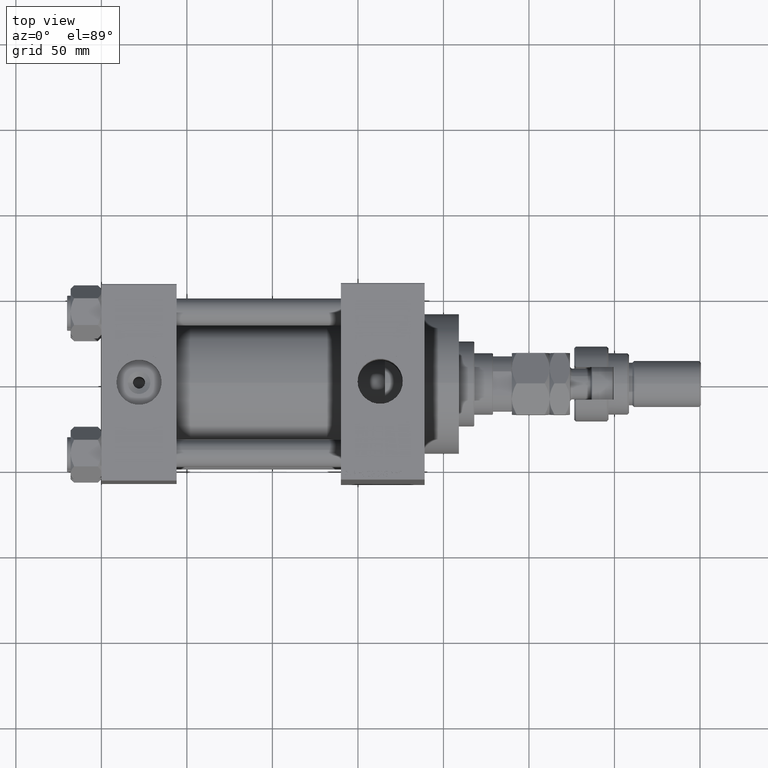
[diagram: clean part render]
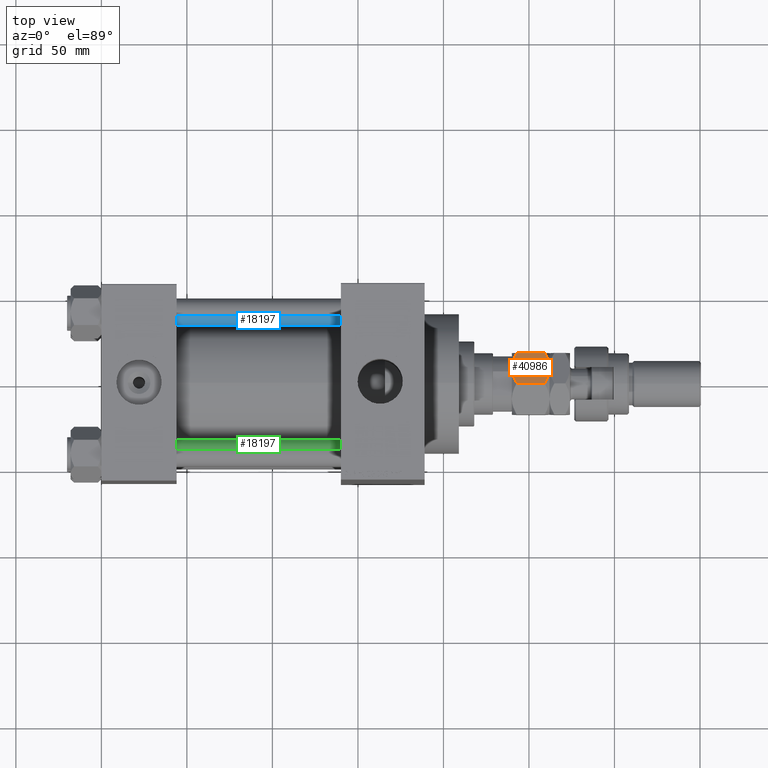
[diagram: same view with three faces highlighted in distinct colors, each labeled with its STEP entity id]
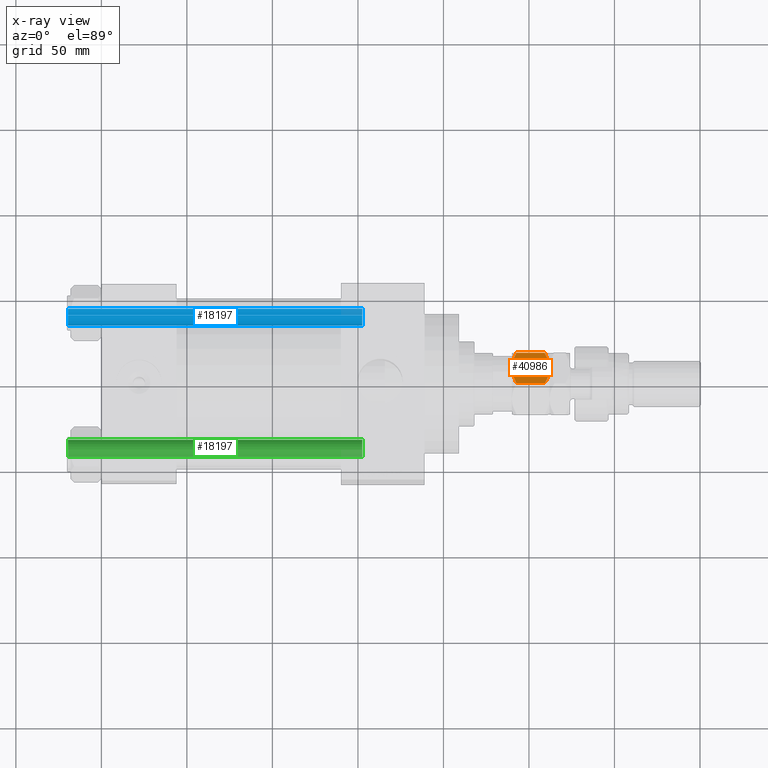
[diagram: x-ray of the same camera — body ghosted, the three highlighted faces saturated]
A machine part, top view with three faces highlighted in distinct colors.
The next image is the same camera in x-ray (body ghosted, the three faces saturated) — at least one of them is partly hidden behind the body in this view.
Their STEP definitions:

[orange] entity #40986 — the highlighted planar face has unit normal (0, -0.5, -0.866).
#447 = CARTESIAN_POINT ( 'NONE',  ( -18.00000000000000000, 0.000000000000000000, 0.000000000000000000 ) ) ;
#953 = CARTESIAN_POINT ( 'NONE',  ( -18.00000000000000355, 8.761367480501975891, 2.004069294401323198 ) ) ;
#1631 = ORIENTED_EDGE ( 'NONE', *, *, #30026, .F. ) ;
#2647 = CARTESIAN_POINT ( 'NONE',  ( -18.00000000000000711, -6.216134505391694098, 20.97498393630432645 ) ) ;
#2758 = CARTESIAN_POINT ( 'NONE',  ( -18.00000000000000355, -5.777644679957243845, 0.8999462410975485049 ) ) ;
#2815 = B_SPLINE_CURVE_WITH_KNOTS ( 'NONE', 3,
 ( #14687, #37688, #30282, #13704, #10604, #33379, #21631, #42033, #7028, #25468 ),
 .UNSPECIFIED., .F., .F.,
 ( 4, 2, 2, 2, 4 ),
 ( 0.02782233635826646123, 0.03053256470195757355, 0.03188767887380312971, 0.03324279304564868587, 0.03866324973303091050 ),
 .UNSPECIFIED. ) ;
#2896 = FACE_OUTER_BOUND ( 'NONE', #29138, .T. ) ;
#2990 = CARTESIAN_POINT ( 'NONE',  ( -18.00000000000000000, -10.39230484541326582, 2.784609690826517436 ) ) ;
#3261 = CARTESIAN_POINT ( 'NONE',  ( -18.00000000000000000, -3.606961701950821109, 0.2821992827987603869 ) ) ;
#3632 = VECTOR ( 'NONE', #13145, 1000.000000000000000 ) ;
#4502 = EDGE_CURVE ( 'NONE', #19334, #36845, #42095, .T. ) ;
#4799 = CARTESIAN_POINT ( 'NONE',  ( -18.00000000000000355, 4.484118396622230662, 0.5315467738039389989 ) ) ;
#5221 = LINE ( 'NONE', #25174, #3632 ) ;
#5397 = CARTESIAN_POINT ( 'NONE',  ( -18.00000000000000000, -10.39230484541326582, 19.21539030917347901 ) ) ;
#5794 = CARTESIAN_POINT ( 'NONE',  ( -18.00000000000000355, -0.4570166227920087199, 22.00000000000001421 ) ) ;
#5981 = PLANE ( 'NONE',  #15853 ) ;
#6743 = VECTOR ( 'NONE', #50526, 1000.000000000000000 ) ;
#7028 = CARTESIAN_POINT ( 'NONE',  ( -18.00000000000000355, 1.830228188859417182, 22.00000000000001776 ) ) ;
#7712 = B_SPLINE_CURVE_WITH_KNOTS ( 'NONE', 3,
 ( #447, #19882, #16544, #16043, #27554, #35202, #4799, #42874, #32138, #953, #47721, #43373 ),
 .UNSPECIFIED., .F., .F.,
 ( 4, 2, 2, 2, 2, 4 ),
 ( 0.03866324973303089663, 0.04001676336829056158, 0.04137027700355023346, 0.04407730427406956336, 0.04678433154458890020, 0.04949135881510823010 ),
 .UNSPECIFIED. ) ;
#9572 = CARTESIAN_POINT ( 'NONE',  ( -18.00000000000000000, 10.39230484541327115, 2.784609690826521433 ) ) ;
#10604 = CARTESIAN_POINT ( 'NONE',  ( -17.99999999999999645, 7.068075135443441681, 20.66621128172916499 ) ) ;
#10764 = VERTEX_POINT ( 'NONE', #5397 ) ;
#12113 = ORIENTED_EDGE ( 'NONE', *, *, #27868, .F. ) ;
#13145 = DIRECTION ( 'NONE',  ( -0.000000000000000000, -0.000000000000000000, -1.000000000000000000 ) ) ;
#13704 = CARTESIAN_POINT ( 'NONE',  ( -17.99999999999999289, 7.496347219517978999, 20.50523559702920195 ) ) ;
#13898 = DIRECTION ( 'NONE',  ( 1.000000000000000000, 0.000000000000000000, -0.000000000000000000 ) ) ;
#14677 = ORIENTED_EDGE ( 'NONE', *, *, #40027, .F. ) ;
#14687 = CARTESIAN_POINT ( 'NONE',  ( -18.00000000000000000, 10.39230484541327293, 19.21539030917347546 ) ) ;
#15853 = AXIS2_PLACEMENT_3D ( 'NONE', #37145, #13898, #48911 ) ;
#16043 = CARTESIAN_POINT ( 'NONE',  ( -17.99999999999999645, 1.820915739938816502, 0.08623745797432426363 ) ) ;
#16544 = CARTESIAN_POINT ( 'NONE',  ( -17.99999999999999645, 0.9155406990339314266, 0.01761543672925007520 ) ) ;
#18096 = CARTESIAN_POINT ( 'NONE',  ( -18.00000000000000000, -10.39230484541326582, 2.784609690826517436 ) ) ;
#18227 = CARTESIAN_POINT ( 'NONE',  ( -18.00000000000000000, -10.39230484541326582, 19.21539030917347901 ) ) ;
#18486 = CARTESIAN_POINT ( 'NONE',  ( -18.00000000000000000, -2.269920501599952622, 21.86278919860200531 ) ) ;
#19106 = CARTESIAN_POINT ( 'NONE',  ( -18.00000000000000000, -7.068075135443438128, 1.333788718270820350 ) ) ;
#19334 = VERTEX_POINT ( 'NONE', #30472 ) ;
#19882 = CARTESIAN_POINT ( 'NONE',  ( -18.00000000000000355, 0.4570166227920097191, -1.873996868329094797E-14 ) ) ;
#20249 = VERTEX_POINT ( 'NONE', #49915 ) ;
#20395 = CARTESIAN_POINT ( 'NONE',  ( -17.99999999999999645, 0.000000000000000000, 22.00000000000000000 ) ) ;
#20921 = B_SPLINE_CURVE_WITH_KNOTS ( 'NONE', 3,
 ( #22571, #5794, #46065, #30230, #18486, #36961, #38137, #2647, #46317, #42481, #41727, #18227 ),
 .UNSPECIFIED., .F., .F.,
 ( 4, 2, 2, 2, 2, 4 ),
 ( 0.03866324973303091050, 0.04001676336829057545, 0.04137027700355024040, 0.04407730427406957724, 0.04678433154458891408, 0.04949135881510824397 ),
 .UNSPECIFIED. ) ;
#21631 = CARTESIAN_POINT ( 'NONE',  ( -17.99999999999999645, 5.777644679957247398, 21.10005375890244039 ) ) ;
#22571 = CARTESIAN_POINT ( 'NONE',  ( -17.99999999999999645, 0.000000000000000000, 22.00000000000000000 ) ) ;
#22995 = VERTEX_POINT ( 'NONE', #2990 ) ;
#24306 = EDGE_CURVE ( 'NONE', #43115, #10764, #20921, .T. ) ;
#25174 = CARTESIAN_POINT ( 'NONE',  ( -18.00000000000000000, -10.39230484541326582, 22.00000000000000000 ) ) ;
#25468 = CARTESIAN_POINT ( 'NONE',  ( -17.99999999999999645, 0.000000000000000000, 22.00000000000000000 ) ) ;
#25784 = CARTESIAN_POINT ( 'NONE',  ( -18.00000000000000000, -9.585738860786737092, 2.381326698513256179 ) ) ;
#27554 = CARTESIAN_POINT ( 'NONE',  ( -18.00000000000000000, 2.269920501599953511, 0.1372108013979898844 ) ) ;
#27868 = EDGE_CURVE ( 'NONE', #22995, #20249, #36499, .T. ) ;
#29138 = EDGE_LOOP ( 'NONE', ( #12113, #45011, #33942, #14677, #35777, #1631 ) ) ;
#30026 = EDGE_CURVE ( 'NONE', #20249, #36845, #7712, .T. ) ;
#30230 = CARTESIAN_POINT ( 'NONE',  ( -18.00000000000000000, -1.820915739938815392, 21.91376254202566543 ) ) ;
#30282 = CARTESIAN_POINT ( 'NONE',  ( -18.00000000000000000, 8.763088818352416709, 19.99514569897121774 ) ) ;
#30472 = CARTESIAN_POINT ( 'NONE',  ( -18.00000000000000000, 10.39230484541327293, 19.21539030917347546 ) ) ;
#32138 = CARTESIAN_POINT ( 'NONE',  ( -17.99999999999999645, 7.070713019734868432, 1.323462702483232833 ) ) ;
#33379 = CARTESIAN_POINT ( 'NONE',  ( -18.00000000000000711, 6.209292796908482792, 20.96337695072463703 ) ) ;
#33937 = CARTESIAN_POINT ( 'NONE',  ( -18.00000000000000355, -1.830228188859414518, -1.798420353610330795E-14 ) ) ;
#33942 = ORIENTED_EDGE ( 'NONE', *, *, #24306, .F. ) ;
#35202 = CARTESIAN_POINT ( 'NONE',  ( -18.00000000000000711, 3.606660380382270326, 0.3366165194802389071 ) ) ;
#35777 = ORIENTED_EDGE ( 'NONE', *, *, #4502, .T. ) ;
#36499 = B_SPLINE_CURVE_WITH_KNOTS ( 'NONE', 3,
 ( #18096, #25784, #41356, #49264, #19106, #37751, #2758, #3261, #33937, #49523 ),
 .UNSPECIFIED., .F., .F.,
 ( 4, 2, 2, 2, 4 ),
 ( 0.02782233635826646123, 0.03053256470195757008, 0.03188767887380312277, 0.03324279304564867893, 0.03866324973303089663 ),
 .UNSPECIFIED. ) ;
#36845 = VERTEX_POINT ( 'NONE', #9572 ) ;
#36961 = CARTESIAN_POINT ( 'NONE',  ( -18.00000000000000355, -3.606660380382266329, 21.66338348051975871 ) ) ;
#37145 = CARTESIAN_POINT ( 'NONE',  ( -18.00000000000000000, 10.39230484541327293, 22.00000000000000000 ) ) ;
#37688 = CARTESIAN_POINT ( 'NONE',  ( -18.00000000000000000, 9.585738860786747750, 19.61867330148673716 ) ) ;
#37751 = CARTESIAN_POINT ( 'NONE',  ( -18.00000000000000000, -6.209292796908479239, 1.036623049275358754 ) ) ;
#38137 = CARTESIAN_POINT ( 'NONE',  ( -18.00000000000000000, -4.484118396622227110, 21.46845322619605767 ) ) ;
#40027 = EDGE_CURVE ( 'NONE', #19334, #43115, #2815, .T. ) ;
#40926 = EDGE_CURVE ( 'NONE', #10764, #22995, #5221, .T. ) ;
#40986 = ADVANCED_FACE ( 'NONE', ( #2896 ), #5981, .F. ) ;
#41356 = CARTESIAN_POINT ( 'NONE',  ( -18.00000000000000000, -8.763088818352413156, 2.004854301028774266 ) ) ;
#41727 = CARTESIAN_POINT ( 'NONE',  ( -18.00000000000000000, -9.585844502997481698, 19.61862048038136308 ) ) ;
#41843 = CARTESIAN_POINT ( 'NONE',  ( -18.00000000000000000, 10.39230484541327293, 22.00000000000000000 ) ) ;
#42033 = CARTESIAN_POINT ( 'NONE',  ( -18.00000000000000355, 3.606961701950826438, 21.71780071720124283 ) ) ;
#42095 = LINE ( 'NONE', #41843, #6743 ) ;
#42481 = CARTESIAN_POINT ( 'NONE',  ( -18.00000000000000355, -8.761367480501970562, 19.99593070559867414 ) ) ;
#42874 = CARTESIAN_POINT ( 'NONE',  ( -18.00000000000000000, 6.216134505391694098, 1.025016063695673774 ) ) ;
#43115 = VERTEX_POINT ( 'NONE', #20395 ) ;
#43373 = CARTESIAN_POINT ( 'NONE',  ( -18.00000000000000000, 10.39230484541327115, 2.784609690826521433 ) ) ;
#45011 = ORIENTED_EDGE ( 'NONE', *, *, #40926, .F. ) ;
#46065 = CARTESIAN_POINT ( 'NONE',  ( -18.00000000000000000, -0.9155406990339308715, 21.98238456327074530 ) ) ;
#46317 = CARTESIAN_POINT ( 'NONE',  ( -18.00000000000000000, -7.070713019734865767, 20.67653729751676650 ) ) ;
#47721 = CARTESIAN_POINT ( 'NONE',  ( -18.00000000000000000, 9.585844502997485250, 2.381379519618630702 ) ) ;
#48911 = DIRECTION ( 'NONE',  ( -0.000000000000000000, 0.000000000000000000, -1.000000000000000000 ) ) ;
#49264 = CARTESIAN_POINT ( 'NONE',  ( -17.99999999999999645, -7.496347219517973670, 1.494764402970788497 ) ) ;
#49523 = CARTESIAN_POINT ( 'NONE',  ( -18.00000000000000000, 0.000000000000000000, 0.000000000000000000 ) ) ;
#49915 = CARTESIAN_POINT ( 'NONE',  ( -18.00000000000000000, 0.000000000000000000, 0.000000000000000000 ) ) ;
#50526 = DIRECTION ( 'NONE',  ( -0.000000000000000000, -0.000000000000000000, -1.000000000000000000 ) ) ;

[blue] entity #18197 — the highlighted cylindrical surface (edge-blend (fillet) strip) has radius 8 mm, axis along (-1, -0, 0).
#1606 = CARTESIAN_POINT ( 'NONE',  ( 8.000000000000000000, 9.797174393178825657E-16, 172.5000000000000000 ) ) ;
#1720 = DIRECTION ( 'NONE',  ( 1.000000000000000000, 0.000000000000000000, 0.000000000000000000 ) ) ;
#2104 = EDGE_CURVE ( 'NONE', #43745, #14968, #48422, .T. ) ;
#3431 = CARTESIAN_POINT ( 'NONE',  ( 0.000000000000000000, 0.000000000000000000, 173.0000000000000000 ) ) ;
#3682 = FACE_OUTER_BOUND ( 'NONE', #47921, .T. ) ;
#4012 = CARTESIAN_POINT ( 'NONE',  ( -8.000000000000000000, 0.000000000000000000, 0.4999999999999449329 ) ) ;
#5605 = ORIENTED_EDGE ( 'NONE', *, *, #48758, .T. ) ;
#5807 = CARTESIAN_POINT ( 'NONE',  ( 0.000000000000000000, 0.000000000000000000, 0.4999999999999449329 ) ) ;
#6645 = CARTESIAN_POINT ( 'NONE',  ( -8.000000000000000000, 0.000000000000000000, 172.5000000000000000 ) ) ;
#10236 = AXIS2_PLACEMENT_3D ( 'NONE', #3431, #46110, #11104 ) ;
#11104 = DIRECTION ( 'NONE',  ( -1.000000000000000000, 0.000000000000000000, 0.000000000000000000 ) ) ;
#12737 = DIRECTION ( 'NONE',  ( -0.000000000000000000, -0.000000000000000000, -1.000000000000000000 ) ) ;
#14968 = VERTEX_POINT ( 'NONE', #6645 ) ;
#15407 = VERTEX_POINT ( 'NONE', #4012 ) ;
#17217 = EDGE_CURVE ( 'NONE', #15407, #47379, #25718, .T. ) ;
#18197 = ADVANCED_FACE ( 'NONE', ( #3682 ), #30524, .T. ) ;
#18889 = CARTESIAN_POINT ( 'NONE',  ( 8.000000000000000000, 9.797174393178825657E-16, 173.0000000000000000 ) ) ;
#20632 = ORIENTED_EDGE ( 'NONE', *, *, #2104, .T. ) ;
#25718 = CIRCLE ( 'NONE', #33094, 8.000000000000000000 ) ;
#28015 = AXIS2_PLACEMENT_3D ( 'NONE', #47305, #43460, #42706 ) ;
#28309 = VECTOR ( 'NONE', #12737, 1000.000000000000000 ) ;
#28590 = CARTESIAN_POINT ( 'NONE',  ( -8.000000000000000000, 0.000000000000000000, 173.0000000000000000 ) ) ;
#30524 = CYLINDRICAL_SURFACE ( 'NONE', #10236, 8.000000000000000000 ) ;
#31880 = ORIENTED_EDGE ( 'NONE', *, *, #17217, .T. ) ;
#32644 = CARTESIAN_POINT ( 'NONE',  ( 8.000000000000000000, 9.797174393178825657E-16, 0.4999999999999449329 ) ) ;
#33094 = AXIS2_PLACEMENT_3D ( 'NONE', #5807, #44647, #1720 ) ;
#36491 = LINE ( 'NONE', #28590, #28309 ) ;
#42706 = DIRECTION ( 'NONE',  ( 1.000000000000000000, 0.000000000000000000, 0.000000000000000000 ) ) ;
#43460 = DIRECTION ( 'NONE',  ( 0.000000000000000000, 0.000000000000000000, -1.000000000000000000 ) ) ;
#43745 = VERTEX_POINT ( 'NONE', #1606 ) ;
#44647 = DIRECTION ( 'NONE',  ( -0.000000000000000000, -0.000000000000000000, 1.000000000000000000 ) ) ;
#45159 = EDGE_CURVE ( 'NONE', #43745, #47379, #46726, .T. ) ;
#46110 = DIRECTION ( 'NONE',  ( -0.000000000000000000, -0.000000000000000000, -1.000000000000000000 ) ) ;
#46474 = DIRECTION ( 'NONE',  ( -0.000000000000000000, -0.000000000000000000, -1.000000000000000000 ) ) ;
#46726 = LINE ( 'NONE', #18889, #50185 ) ;
#47280 = ORIENTED_EDGE ( 'NONE', *, *, #45159, .F. ) ;
#47305 = CARTESIAN_POINT ( 'NONE',  ( 0.000000000000000000, 0.000000000000000000, 172.5000000000000000 ) ) ;
#47379 = VERTEX_POINT ( 'NONE', #32644 ) ;
#47921 = EDGE_LOOP ( 'NONE', ( #47280, #20632, #5605, #31880 ) ) ;
#48422 = CIRCLE ( 'NONE', #28015, 8.000000000000000000 ) ;
#48758 = EDGE_CURVE ( 'NONE', #14968, #15407, #36491, .T. ) ;
#50185 = VECTOR ( 'NONE', #46474, 1000.000000000000000 ) ;

[green] entity #18197 — the highlighted cylindrical surface (edge-blend (fillet) strip) has radius 8 mm, axis along (1, 0, 0).
#1606 = CARTESIAN_POINT ( 'NONE',  ( 8.000000000000000000, 9.797174393178825657E-16, 172.5000000000000000 ) ) ;
#1720 = DIRECTION ( 'NONE',  ( 1.000000000000000000, 0.000000000000000000, 0.000000000000000000 ) ) ;
#2104 = EDGE_CURVE ( 'NONE', #43745, #14968, #48422, .T. ) ;
#3431 = CARTESIAN_POINT ( 'NONE',  ( 0.000000000000000000, 0.000000000000000000, 173.0000000000000000 ) ) ;
#3682 = FACE_OUTER_BOUND ( 'NONE', #47921, .T. ) ;
#4012 = CARTESIAN_POINT ( 'NONE',  ( -8.000000000000000000, 0.000000000000000000, 0.4999999999999449329 ) ) ;
#5605 = ORIENTED_EDGE ( 'NONE', *, *, #48758, .T. ) ;
#5807 = CARTESIAN_POINT ( 'NONE',  ( 0.000000000000000000, 0.000000000000000000, 0.4999999999999449329 ) ) ;
#6645 = CARTESIAN_POINT ( 'NONE',  ( -8.000000000000000000, 0.000000000000000000, 172.5000000000000000 ) ) ;
#10236 = AXIS2_PLACEMENT_3D ( 'NONE', #3431, #46110, #11104 ) ;
#11104 = DIRECTION ( 'NONE',  ( -1.000000000000000000, 0.000000000000000000, 0.000000000000000000 ) ) ;
#12737 = DIRECTION ( 'NONE',  ( -0.000000000000000000, -0.000000000000000000, -1.000000000000000000 ) ) ;
#14968 = VERTEX_POINT ( 'NONE', #6645 ) ;
#15407 = VERTEX_POINT ( 'NONE', #4012 ) ;
#17217 = EDGE_CURVE ( 'NONE', #15407, #47379, #25718, .T. ) ;
#18197 = ADVANCED_FACE ( 'NONE', ( #3682 ), #30524, .T. ) ;
#18889 = CARTESIAN_POINT ( 'NONE',  ( 8.000000000000000000, 9.797174393178825657E-16, 173.0000000000000000 ) ) ;
#20632 = ORIENTED_EDGE ( 'NONE', *, *, #2104, .T. ) ;
#25718 = CIRCLE ( 'NONE', #33094, 8.000000000000000000 ) ;
#28015 = AXIS2_PLACEMENT_3D ( 'NONE', #47305, #43460, #42706 ) ;
#28309 = VECTOR ( 'NONE', #12737, 1000.000000000000000 ) ;
#28590 = CARTESIAN_POINT ( 'NONE',  ( -8.000000000000000000, 0.000000000000000000, 173.0000000000000000 ) ) ;
#30524 = CYLINDRICAL_SURFACE ( 'NONE', #10236, 8.000000000000000000 ) ;
#31880 = ORIENTED_EDGE ( 'NONE', *, *, #17217, .T. ) ;
#32644 = CARTESIAN_POINT ( 'NONE',  ( 8.000000000000000000, 9.797174393178825657E-16, 0.4999999999999449329 ) ) ;
#33094 = AXIS2_PLACEMENT_3D ( 'NONE', #5807, #44647, #1720 ) ;
#36491 = LINE ( 'NONE', #28590, #28309 ) ;
#42706 = DIRECTION ( 'NONE',  ( 1.000000000000000000, 0.000000000000000000, 0.000000000000000000 ) ) ;
#43460 = DIRECTION ( 'NONE',  ( 0.000000000000000000, 0.000000000000000000, -1.000000000000000000 ) ) ;
#43745 = VERTEX_POINT ( 'NONE', #1606 ) ;
#44647 = DIRECTION ( 'NONE',  ( -0.000000000000000000, -0.000000000000000000, 1.000000000000000000 ) ) ;
#45159 = EDGE_CURVE ( 'NONE', #43745, #47379, #46726, .T. ) ;
#46110 = DIRECTION ( 'NONE',  ( -0.000000000000000000, -0.000000000000000000, -1.000000000000000000 ) ) ;
#46474 = DIRECTION ( 'NONE',  ( -0.000000000000000000, -0.000000000000000000, -1.000000000000000000 ) ) ;
#46726 = LINE ( 'NONE', #18889, #50185 ) ;
#47280 = ORIENTED_EDGE ( 'NONE', *, *, #45159, .F. ) ;
#47305 = CARTESIAN_POINT ( 'NONE',  ( 0.000000000000000000, 0.000000000000000000, 172.5000000000000000 ) ) ;
#47379 = VERTEX_POINT ( 'NONE', #32644 ) ;
#47921 = EDGE_LOOP ( 'NONE', ( #47280, #20632, #5605, #31880 ) ) ;
#48422 = CIRCLE ( 'NONE', #28015, 8.000000000000000000 ) ;
#48758 = EDGE_CURVE ( 'NONE', #14968, #15407, #36491, .T. ) ;
#50185 = VECTOR ( 'NONE', #46474, 1000.000000000000000 ) ;